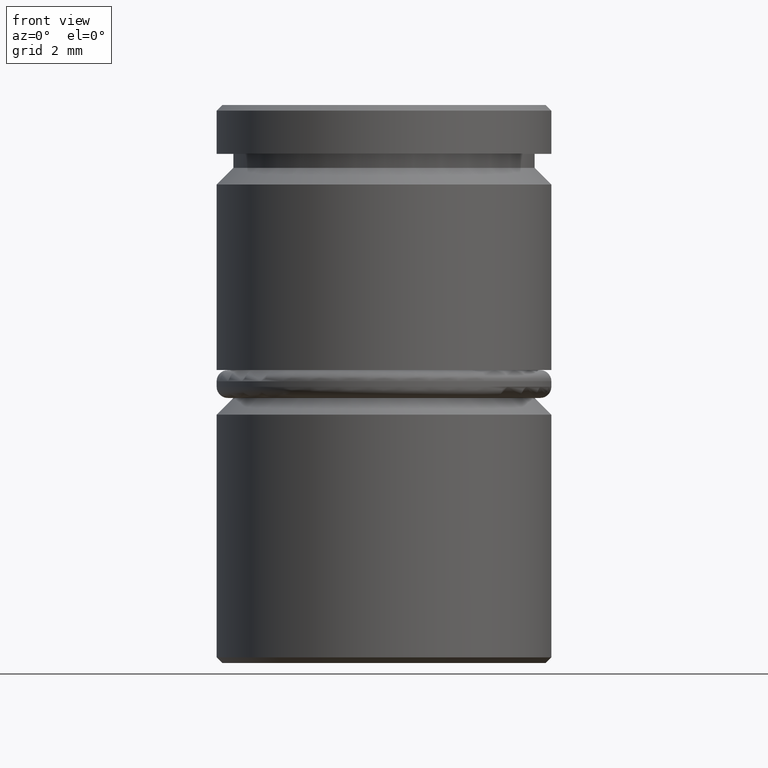
[diagram: clean part render]
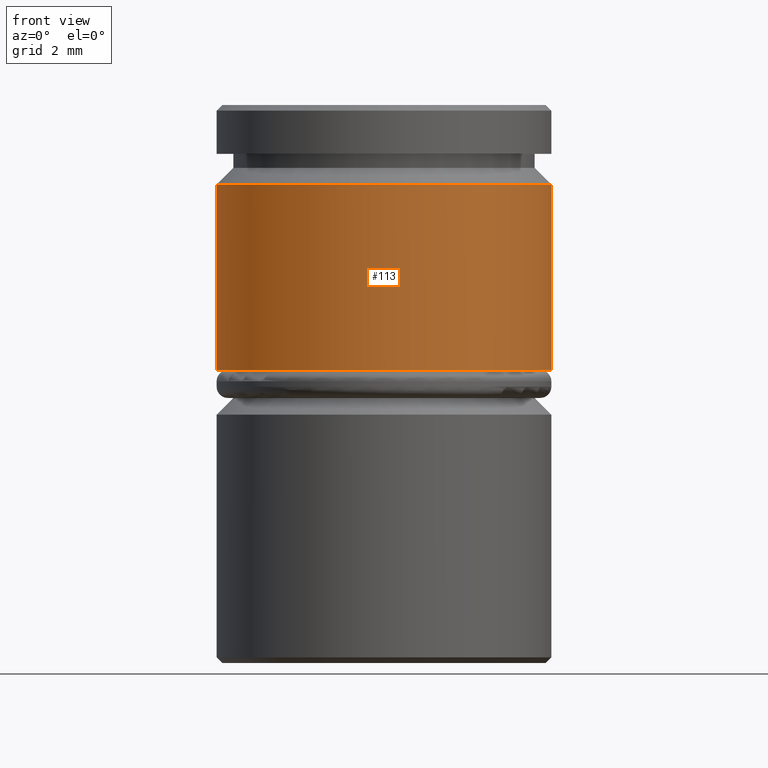
[diagram: same view with one face highlighted and labeled with its STEP entity id]
A machine part, front view. The second image highlights one B-rep face of the part: STEP entity #113.
In plain terms, the highlighted cylindrical surface (partial cylindrical patch) has radius 3 mm, axis along (-0, -0, 1).
Its self-contained STEP definition (entity closure, byte-faithful):
#12 = CARTESIAN_POINT ( 'NONE',  ( 0.000000000000000000, 0.000000000000000000, -1.424999999999995381 ) ) ;
#42 = CARTESIAN_POINT ( 'NONE',  ( -3.000000000000000000, 3.673940397442059868E-16, 0.000000000000000000 ) ) ;
#95 = CARTESIAN_POINT ( 'NONE',  ( 3.000000000000000000, 0.000000000000000000, -4.749999999999999112 ) ) ;
#98 = AXIS2_PLACEMENT_3D ( 'NONE', #772, #153, #633 ) ;
#113 = ADVANCED_FACE ( 'NONE', ( #365 ), #543, .T. ) ;
#132 = LINE ( 'NONE', #42, #1010 ) ;
#153 = DIRECTION ( 'NONE',  ( -0.000000000000000000, -0.000000000000000000, 1.000000000000000000 ) ) ;
#173 = DIRECTION ( 'NONE',  ( -0.000000000000000000, -0.000000000000000000, 1.000000000000000000 ) ) ;
#216 = EDGE_CURVE ( 'NONE', #1140, #1018, #470, .T. ) ;
#235 = EDGE_CURVE ( 'NONE', #1140, #1077, #132, .T. ) ;
#313 = ORIENTED_EDGE ( 'NONE', *, *, #931, .T. ) ;
#354 = AXIS2_PLACEMENT_3D ( 'NONE', #721, #373, #634 ) ;
#360 = AXIS2_PLACEMENT_3D ( 'NONE', #12, #571, #989 ) ;
#365 = FACE_OUTER_BOUND ( 'NONE', #773, .T. ) ;
#373 = DIRECTION ( 'NONE',  ( -0.000000000000000000, -0.000000000000000000, 1.000000000000000000 ) ) ;
#414 = DIRECTION ( 'NONE',  ( -0.000000000000000000, -0.000000000000000000, 1.000000000000000000 ) ) ;
#452 = ORIENTED_EDGE ( 'NONE', *, *, #216, .T. ) ;
#470 = CIRCLE ( 'NONE', #98, 3.000000000000000000 ) ;
#485 = CARTESIAN_POINT ( 'NONE',  ( -3.000000000000000000, 3.673940397442059868E-16, -4.749999999999999112 ) ) ;
#543 = CYLINDRICAL_SURFACE ( 'NONE', #354, 3.000000000000000000 ) ;
#571 = DIRECTION ( 'NONE',  ( 0.000000000000000000, 0.000000000000000000, -1.000000000000000000 ) ) ;
#580 = VERTEX_POINT ( 'NONE', #636 ) ;
#591 = VECTOR ( 'NONE', #173, 1000.000000000000000 ) ;
#605 = CIRCLE ( 'NONE', #360, 3.000000000000000000 ) ;
#608 = ORIENTED_EDGE ( 'NONE', *, *, #1034, .T. ) ;
#633 = DIRECTION ( 'NONE',  ( 1.000000000000000000, 0.000000000000000000, 0.000000000000000000 ) ) ;
#634 = DIRECTION ( 'NONE',  ( 1.000000000000000000, 0.000000000000000000, 0.000000000000000000 ) ) ;
#636 = CARTESIAN_POINT ( 'NONE',  ( 3.000000000000000000, 0.000000000000000000, -1.424999999999995381 ) ) ;
#641 = LINE ( 'NONE', #983, #591 ) ;
#721 = CARTESIAN_POINT ( 'NONE',  ( 0.000000000000000000, 0.000000000000000000, 0.000000000000000000 ) ) ;
#772 = CARTESIAN_POINT ( 'NONE',  ( 0.000000000000000000, 0.000000000000000000, -4.749999999999999112 ) ) ;
#773 = EDGE_LOOP ( 'NONE', ( #1025, #452, #313, #608 ) ) ;
#931 = EDGE_CURVE ( 'NONE', #1018, #580, #641, .T. ) ;
#983 = CARTESIAN_POINT ( 'NONE',  ( 3.000000000000000000, 0.000000000000000000, 0.000000000000000000 ) ) ;
#989 = DIRECTION ( 'NONE',  ( 1.000000000000000000, 0.000000000000000000, 0.000000000000000000 ) ) ;
#1010 = VECTOR ( 'NONE', #414, 1000.000000000000000 ) ;
#1018 = VERTEX_POINT ( 'NONE', #95 ) ;
#1025 = ORIENTED_EDGE ( 'NONE', *, *, #235, .F. ) ;
#1034 = EDGE_CURVE ( 'NONE', #580, #1077, #605, .T. ) ;
#1056 = CARTESIAN_POINT ( 'NONE',  ( -3.000000000000000000, 3.673940397442059868E-16, -1.424999999999995381 ) ) ;
#1077 = VERTEX_POINT ( 'NONE', #1056 ) ;
#1140 = VERTEX_POINT ( 'NONE', #485 ) ;